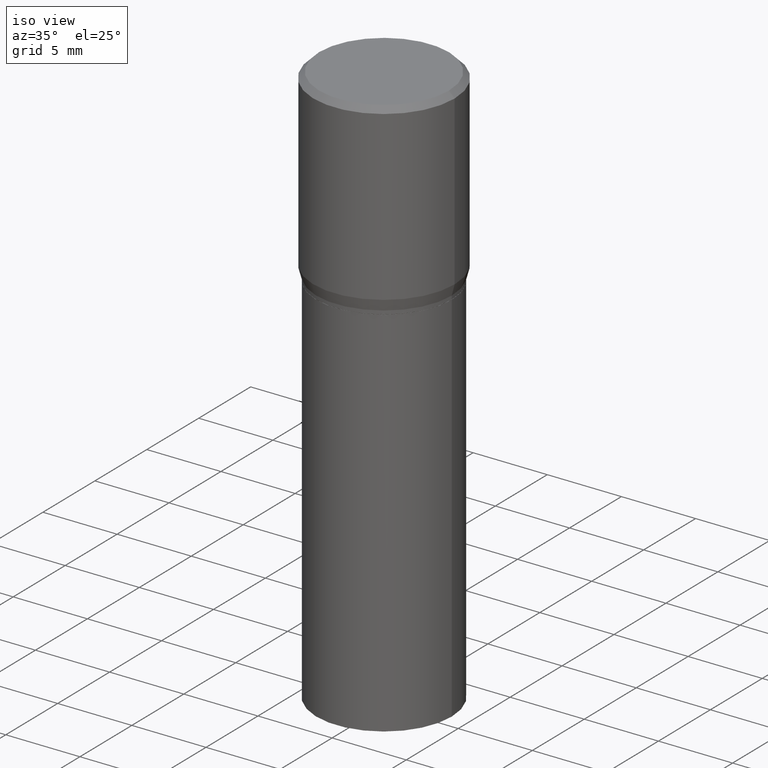
[diagram: clean part render]
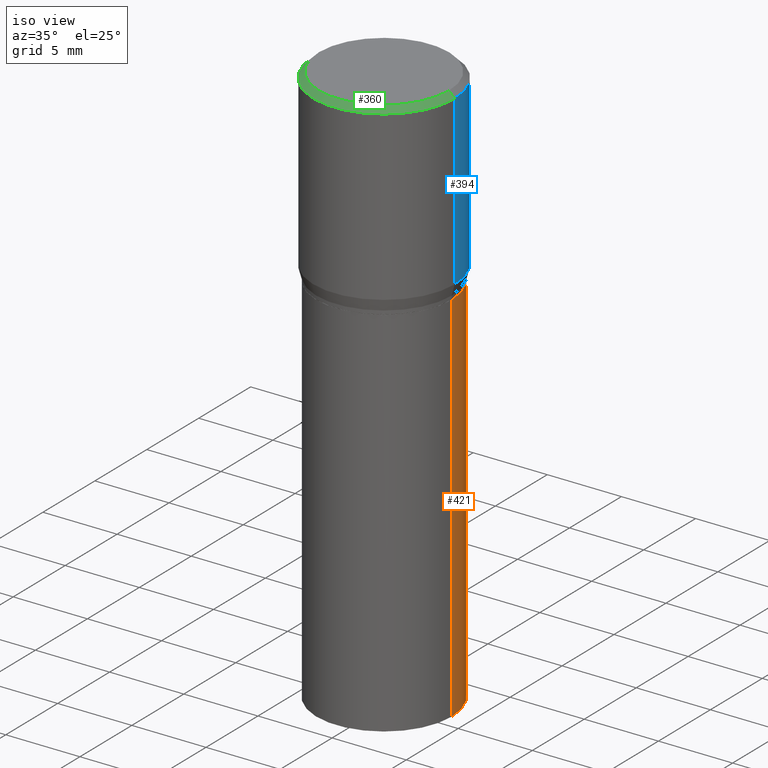
[diagram: same view with three faces highlighted in distinct colors, each labeled with its STEP entity id]
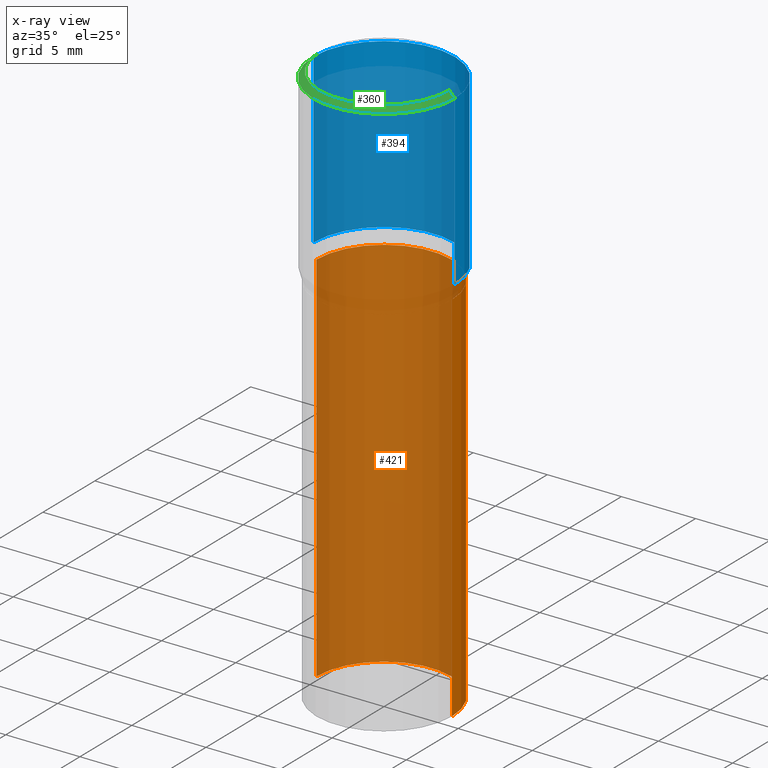
[diagram: x-ray of the same camera — body ghosted, the three highlighted faces saturated]
A machine part, iso view with three faces highlighted in distinct colors.
The next image is the same camera in x-ray (body ghosted, the three faces saturated) — at least one of them is partly hidden behind the body in this view.
Their STEP definitions:

[orange] entity #421 — the highlighted cylindrical surface (partial cylindrical patch) has radius 4.5644 mm, axis along (-0, 0, 1).
#25 = CIRCLE ( 'NONE', #36, 0.1796999999999999986 ) ;
#30 = CARTESIAN_POINT ( 'NONE',  ( -0.1796999999999999986, -2.214636042682246150E-15, -0.5000000000000001110 ) ) ;
#33 = ORIENTED_EDGE ( 'NONE', *, *, #163, .F. ) ;
#36 = AXIS2_PLACEMENT_3D ( 'NONE', #419, #288, #463 ) ;
#39 = VERTEX_POINT ( 'NONE', #309 ) ;
#71 = DIRECTION ( 'NONE',  ( -2.445468806185136597E-29, 3.491481338843145583E-15, 1.000000000000000000 ) ) ;
#103 = CARTESIAN_POINT ( 'NONE',  ( 0.000000000000000000, 0.000000000000000000, 0.000000000000000000 ) ) ;
#105 = DIRECTION ( 'NONE',  ( 1.000000000000000000, -6.982962677686267499E-15, 0.000000000000000000 ) ) ;
#113 = AXIS2_PLACEMENT_3D ( 'NONE', #103, #310, #392 ) ;
#121 = CARTESIAN_POINT ( 'NONE',  ( -0.1796999999999999986, -2.214636042682246150E-15, -1.500000000000000222 ) ) ;
#141 = CYLINDRICAL_SURFACE ( 'NONE', #113, 0.1796999999999999986 ) ;
#147 = LINE ( 'NONE', #191, #172 ) ;
#151 = LINE ( 'NONE', #298, #361 ) ;
#163 = EDGE_CURVE ( 'NONE', #39, #409, #25, .T. ) ;
#172 = VECTOR ( 'NONE', #376, 39.37007874015748143 ) ;
#181 = EDGE_CURVE ( 'NONE', #302, #328, #305, .T. ) ;
#191 = CARTESIAN_POINT ( 'NONE',  ( 0.1796999999999999986, -1.254838393180221928E-15, 8.762489666105295644E-30 ) ) ;
#194 = AXIS2_PLACEMENT_3D ( 'NONE', #287, #71, #105 ) ;
#197 = DIRECTION ( 'NONE',  ( -2.445468806185136877E-29, 3.491481338843145188E-15, 1.000000000000000000 ) ) ;
#198 = EDGE_LOOP ( 'NONE', ( #270, #264, #33, #401 ) ) ;
#210 = FACE_OUTER_BOUND ( 'NONE', #198, .T. ) ;
#264 = ORIENTED_EDGE ( 'NONE', *, *, #348, .T. ) ;
#270 = ORIENTED_EDGE ( 'NONE', *, *, #181, .T. ) ;
#271 = EDGE_CURVE ( 'NONE', #302, #39, #147, .T. ) ;
#287 = CARTESIAN_POINT ( 'NONE',  ( 3.668203209277704895E-29, -5.237222008264718177E-15, -1.500000000000000222 ) ) ;
#288 = DIRECTION ( 'NONE',  ( -2.445468806185136597E-29, 3.491481338843145583E-15, 1.000000000000000000 ) ) ;
#298 = CARTESIAN_POINT ( 'NONE',  ( -0.1796999999999999986, 1.276845296160900024E-15, -8.839326357188065585E-30 ) ) ;
#302 = VERTEX_POINT ( 'NONE', #334 ) ;
#305 = CIRCLE ( 'NONE', #194, 0.1796999999999999986 ) ;
#309 = CARTESIAN_POINT ( 'NONE',  ( 0.1796999999999999986, -3.000579062601795113E-15, -0.5000000000000001110 ) ) ;
#310 = DIRECTION ( 'NONE',  ( -2.445468806185136597E-29, 3.491481338843145583E-15, 1.000000000000000000 ) ) ;
#328 = VERTEX_POINT ( 'NONE', #121 ) ;
#334 = CARTESIAN_POINT ( 'NONE',  ( 0.1796999999999999986, -6.492060401444940696E-15, -1.500000000000000222 ) ) ;
#348 = EDGE_CURVE ( 'NONE', #328, #409, #151, .T. ) ;
#361 = VECTOR ( 'NONE', #197, 39.37007874015748143 ) ;
#376 = DIRECTION ( 'NONE',  ( -2.445468806185136877E-29, 3.491481338843145188E-15, 1.000000000000000000 ) ) ;
#392 = DIRECTION ( 'NONE',  ( 1.000000000000000000, -6.982962677686265922E-15, 4.876176775795935232E-29 ) ) ;
#401 = ORIENTED_EDGE ( 'NONE', *, *, #271, .F. ) ;
#409 = VERTEX_POINT ( 'NONE', #30 ) ;
#419 = CARTESIAN_POINT ( 'NONE',  ( 1.222734403092568719E-29, -1.745740669421573186E-15, -0.5000000000000001110 ) ) ;
#421 = ADVANCED_FACE ( 'NONE', ( #210 ), #141, .T. ) ;
#463 = DIRECTION ( 'NONE',  ( 1.000000000000000000, -6.982962677686265922E-15, 0.000000000000000000 ) ) ;

[blue] entity #394 — the highlighted cylindrical surface (partial cylindrical patch) has radius 4.7625 mm, axis along (-0, 0, 1).
#7 = ORIENTED_EDGE ( 'NONE', *, *, #66, .F. ) ;
#13 = VERTEX_POINT ( 'NONE', #335 ) ;
#24 = DIRECTION ( 'NONE',  ( 1.000000000000000000, -6.982962677686265922E-15, 0.000000000000000000 ) ) ;
#29 = DIRECTION ( 'NONE',  ( -2.445468806185136597E-29, 3.491481338843145583E-15, 1.000000000000000000 ) ) ;
#40 = EDGE_CURVE ( 'NONE', #267, #359, #458, .T. ) ;
#59 = AXIS2_PLACEMENT_3D ( 'NONE', #133, #164, #98 ) ;
#61 = CYLINDRICAL_SURFACE ( 'NONE', #232, 0.1875000000000000278 ) ;
#66 = EDGE_CURVE ( 'NONE', #82, #13, #320, .T. ) ;
#70 = DIRECTION ( 'NONE',  ( -2.445468806185136597E-29, 3.491481338843145583E-15, 1.000000000000000000 ) ) ;
#82 = VERTEX_POINT ( 'NONE', #171 ) ;
#84 = DIRECTION ( 'NONE',  ( -2.445468806185136877E-29, 3.491481338843145188E-15, 1.000000000000000000 ) ) ;
#98 = DIRECTION ( 'NONE',  ( 1.000000000000000000, -6.982962677686265922E-15, 0.000000000000000000 ) ) ;
#101 = CARTESIAN_POINT ( 'NONE',  ( 0.000000000000000000, 0.000000000000000000, 0.000000000000000000 ) ) ;
#126 = ORIENTED_EDGE ( 'NONE', *, *, #295, .F. ) ;
#133 = CARTESIAN_POINT ( 'NONE',  ( 3.668203209277705088E-31, -5.237222008264718399E-17, -0.01499999999999999944 ) ) ;
#164 = DIRECTION ( 'NONE',  ( -2.445468806185136597E-29, 3.491481338843145583E-15, 1.000000000000000000 ) ) ;
#171 = CARTESIAN_POINT ( 'NONE',  ( 0.1875000000000000278, -1.361677722148822285E-15, -0.01499999999999999944 ) ) ;
#188 = CARTESIAN_POINT ( 'NONE',  ( 0.1875000000000000278, -2.918494349247435201E-15, -0.4608900037009628914 ) ) ;
#211 = CARTESIAN_POINT ( 'NONE',  ( 1.127092127133256822E-29, -1.609188847181260193E-15, -0.4608900037009628914 ) ) ;
#215 = DIRECTION ( 'NONE',  ( 1.000000000000000000, -6.982962677686265922E-15, 4.876176775795935793E-29 ) ) ;
#227 = ORIENTED_EDGE ( 'NONE', *, *, #40, .T. ) ;
#232 = AXIS2_PLACEMENT_3D ( 'NONE', #101, #70, #215 ) ;
#238 = EDGE_CURVE ( 'NONE', #359, #13, #358, .T. ) ;
#267 = VERTEX_POINT ( 'NONE', #188 ) ;
#272 = CARTESIAN_POINT ( 'NONE',  ( 0.1875000000000000278, -1.309305502066175008E-15, 9.142831454617381013E-30 ) ) ;
#295 = EDGE_CURVE ( 'NONE', #267, #82, #301, .T. ) ;
#301 = LINE ( 'NONE', #272, #459 ) ;
#318 = CARTESIAN_POINT ( 'NONE',  ( -0.1875000000000000278, 1.332267629550188046E-15, -9.223003294227947991E-30 ) ) ;
#320 = CIRCLE ( 'NONE', #59, 0.1875000000000000278 ) ;
#335 = CARTESIAN_POINT ( 'NONE',  ( -0.1875000000000000278, 5.014870959182341138E-16, -0.01499999999999999944 ) ) ;
#343 = FACE_OUTER_BOUND ( 'NONE', #427, .T. ) ;
#353 = DIRECTION ( 'NONE',  ( -2.445468806185136877E-29, 3.491481338843145188E-15, 1.000000000000000000 ) ) ;
#358 = LINE ( 'NONE', #318, #397 ) ;
#359 = VERTEX_POINT ( 'NONE', #366 ) ;
#366 = CARTESIAN_POINT ( 'NONE',  ( -0.1875000000000000278, -2.769212176310719994E-16, -0.4608900037009628914 ) ) ;
#394 = ADVANCED_FACE ( 'NONE', ( #343 ), #61, .T. ) ;
#397 = VECTOR ( 'NONE', #353, 39.37007874015748143 ) ;
#416 = AXIS2_PLACEMENT_3D ( 'NONE', #211, #29, #24 ) ;
#427 = EDGE_LOOP ( 'NONE', ( #227, #441, #7, #126 ) ) ;
#441 = ORIENTED_EDGE ( 'NONE', *, *, #238, .T. ) ;
#458 = CIRCLE ( 'NONE', #416, 0.1875000000000000278 ) ;
#459 = VECTOR ( 'NONE', #84, 39.37007874015748143 ) ;

[green] entity #360 — the highlighted conical surface has half-angle 45 deg.
#8 = CARTESIAN_POINT ( 'NONE',  ( 3.668203209277705088E-31, -5.237222008264718399E-17, -0.01499999999999999944 ) ) ;
#13 = VERTEX_POINT ( 'NONE', #335 ) ;
#22 = LINE ( 'NONE', #389, #312 ) ;
#23 = CARTESIAN_POINT ( 'NONE',  ( 0.1725000000000000144, -1.261075749640199308E-15, -2.636744989014362231E-17 ) ) ;
#27 = DIRECTION ( 'NONE',  ( 0.7071067811865483499, -7.319954787623257623E-15, -0.7071067811865466846 ) ) ;
#32 = AXIS2_PLACEMENT_3D ( 'NONE', #256, #393, #184 ) ;
#46 = FACE_OUTER_BOUND ( 'NONE', #49, .T. ) ;
#48 = CONICAL_SURFACE ( 'NONE', #432, 0.1875000000000000278, 0.7853981633974495002 ) ;
#49 = EDGE_LOOP ( 'NONE', ( #104, #102, #183, #192 ) ) ;
#82 = VERTEX_POINT ( 'NONE', #171 ) ;
#102 = ORIENTED_EDGE ( 'NONE', *, *, #239, .F. ) ;
#104 = ORIENTED_EDGE ( 'NONE', *, *, #410, .F. ) ;
#118 = VERTEX_POINT ( 'NONE', #23 ) ;
#124 = DIRECTION ( 'NONE',  ( 2.445468806185136597E-29, -3.491481338843145583E-15, -1.000000000000000000 ) ) ;
#129 = CARTESIAN_POINT ( 'NONE',  ( 3.668203209277705088E-31, -5.237222008264718399E-17, -0.01499999999999999944 ) ) ;
#138 = LINE ( 'NONE', #464, #162 ) ;
#157 = CARTESIAN_POINT ( 'NONE',  ( -0.1725000000000000144, 1.230747171942204192E-15, -2.636744989016075847E-17 ) ) ;
#161 = DIRECTION ( 'NONE',  ( 1.000000000000000000, -6.982962677686265922E-15, 0.000000000000000000 ) ) ;
#162 = VECTOR ( 'NONE', #27, 39.37007874015748143 ) ;
#171 = CARTESIAN_POINT ( 'NONE',  ( 0.1875000000000000278, -1.361677722148822285E-15, -0.01499999999999999944 ) ) ;
#183 = ORIENTED_EDGE ( 'NONE', *, *, #379, .T. ) ;
#184 = DIRECTION ( 'NONE',  ( 1.000000000000000000, -6.982962677686266711E-15, 4.876912640186324808E-29 ) ) ;
#192 = ORIENTED_EDGE ( 'NONE', *, *, #329, .T. ) ;
#218 = AXIS2_PLACEMENT_3D ( 'NONE', #129, #274, #161 ) ;
#239 = EDGE_CURVE ( 'NONE', #351, #118, #372, .T. ) ;
#256 = CARTESIAN_POINT ( 'NONE',  ( 6.448077620501702025E-46, -9.206145924434830208E-32, -2.636744989015224123E-17 ) ) ;
#258 = CIRCLE ( 'NONE', #218, 0.1875000000000000278 ) ;
#268 = DIRECTION ( 'NONE',  ( -1.000000000000000000, 6.982962677686265922E-15, 0.000000000000000000 ) ) ;
#274 = DIRECTION ( 'NONE',  ( -2.445468806185136597E-29, 3.491481338843145583E-15, 1.000000000000000000 ) ) ;
#312 = VECTOR ( 'NONE', #420, 39.37007874015748143 ) ;
#329 = EDGE_CURVE ( 'NONE', #13, #82, #258, .T. ) ;
#335 = CARTESIAN_POINT ( 'NONE',  ( -0.1875000000000000278, 5.014870959182341138E-16, -0.01499999999999999944 ) ) ;
#351 = VERTEX_POINT ( 'NONE', #157 ) ;
#360 = ADVANCED_FACE ( 'NONE', ( #46 ), #48, .T. ) ;
#372 = CIRCLE ( 'NONE', #32, 0.1725000000000000144 ) ;
#379 = EDGE_CURVE ( 'NONE', #351, #13, #22, .T. ) ;
#389 = CARTESIAN_POINT ( 'NONE',  ( -0.1875000000000000278, 1.256933281983527732E-15, -0.01499999999999999944 ) ) ;
#393 = DIRECTION ( 'NONE',  ( -2.445468806185136597E-29, 3.491481338843145583E-15, 1.000000000000000000 ) ) ;
#410 = EDGE_CURVE ( 'NONE', #118, #82, #138, .T. ) ;
#420 = DIRECTION ( 'NONE',  ( -0.7071067811865483499, 2.468850131082265738E-15, -0.7071067811865466846 ) ) ;
#432 = AXIS2_PLACEMENT_3D ( 'NONE', #8, #124, #268 ) ;
#464 = CARTESIAN_POINT ( 'NONE',  ( 0.1875000000000000278, -1.338715594664809642E-15, -0.01499999999999999944 ) ) ;